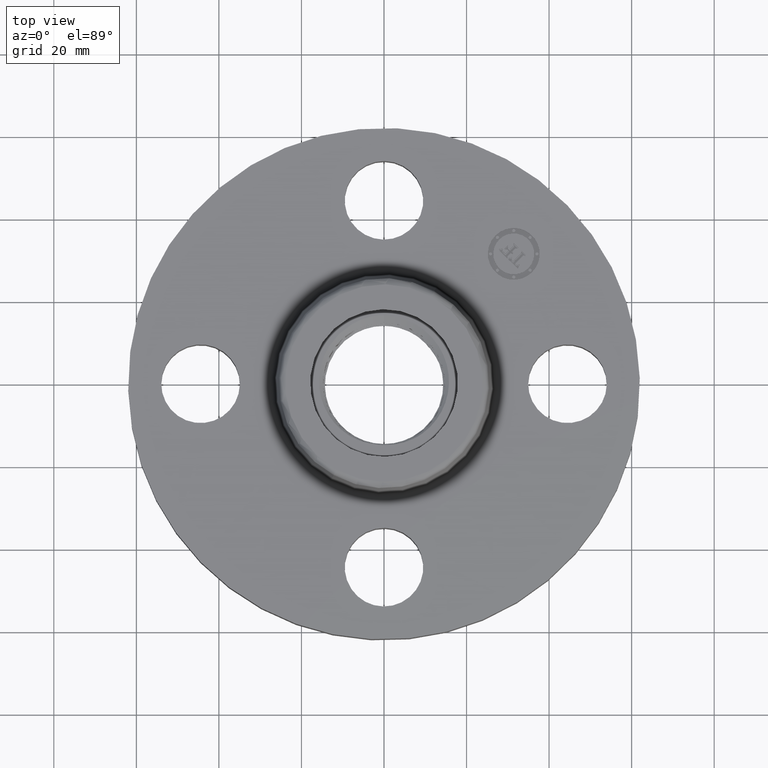
[diagram: clean part render]
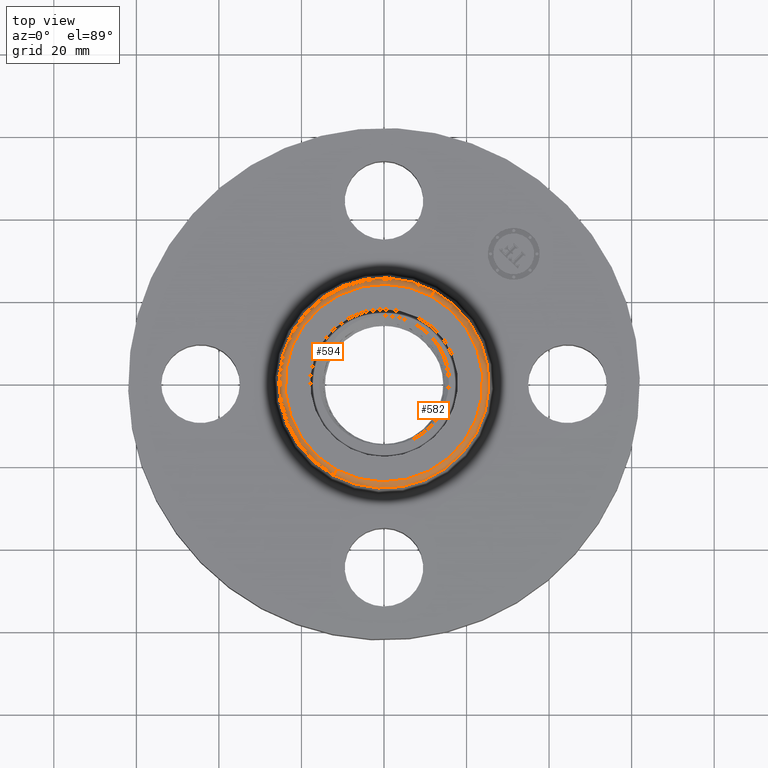
[diagram: same view with one multi-face feature highlighted, each face labeled with its STEP entity id]
A machine part, top view. The highlighted faces form ONE feature: a constant-radius fillet chain: 2 tangent blend faces with common blend radius 1.524 mm. The faces share edges in the B-rep.
Their STEP definitions:
[1] entity #594 (Torus):
#542=AXIS2_PLACEMENT_3D('Circle Axis2P3D',#540,#541,$) ;
#555=AXIS2_PLACEMENT_3D('Torus Axis2P3D',#552,#553,#554) ;
#559=AXIS2_PLACEMENT_3D('Circle Axis2P3D',#557,#558,$) ;
#573=AXIS2_PLACEMENT_3D('Circle Axis2P3D',#571,#572,$) ;
#585=AXIS2_PLACEMENT_3D('Circle Axis2P3D',#583,#584,$) ;
#518=CARTESIAN_POINT('Vertex',(0.480258892685,0.879108006303,0.950418890664)) ;
#525=CARTESIAN_POINT('Vertex',(-0.480258892685,-0.879108006303,0.950418890664)) ;
#540=CARTESIAN_POINT('Axis2P3D Location',(0.,0.,0.950418890664)) ;
#552=CARTESIAN_POINT('Axis2P3D Location',(0.,0.,0.940000000004)) ;
#557=CARTESIAN_POINT('Axis2P3D Location',(0.45193037344,0.827252999652,0.940000000004)) ;
#561=CARTESIAN_POINT('Vertex',(0.45193037344,0.827252999652,1.)) ;
#568=CARTESIAN_POINT('Vertex',(-0.45193037344,-0.827252999652,1.)) ;
#571=CARTESIAN_POINT('Axis2P3D Location',(-0.45193037344,-0.827252999652,0.940000000004)) ;
#583=CARTESIAN_POINT('Axis2P3D Location',(0.,0.,1.)) ;
#541=DIRECTION('Axis2P3D Direction',(0.,0.,-0.0393700787402)) ;
#553=DIRECTION('Axis2P3D Direction',(0.,0.,-0.0393700787402)) ;
#554=DIRECTION('Axis2P3D XDirection',(-0.0188750212049,-0.0345504945626,0.)) ;
#558=DIRECTION('Axis2P3D Direction',(-0.0345504945626,0.0188750212049,0.)) ;
#572=DIRECTION('Axis2P3D Direction',(0.0345504945626,-0.0188750212049,0.)) ;
#584=DIRECTION('Axis2P3D Direction',(0.,0.,-0.0393700787402)) ;
#589=ORIENTED_EDGE('',*,*,#544,.F.) ;
#590=ORIENTED_EDGE('',*,*,#575,.T.) ;
#591=ORIENTED_EDGE('',*,*,#587,.T.) ;
#592=ORIENTED_EDGE('',*,*,#563,.F.) ;
#594=ADVANCED_FACE('PartBody',(#593),#556,.T.) ;
#543=CIRCLE('generated circle',#542,1.00173823464) ;
#560=CIRCLE('generated circle',#559,0.0600000000002) ;
#574=CIRCLE('generated circle',#573,0.0600000000002) ;
#586=CIRCLE('generated circle',#585,0.942649769464) ;
#556=TOROIDAL_SURFACE('homeo Torus',#555,0.942649769464,0.0600000000002) ;
#544=EDGE_CURVE('',#526,#519,#543,.T.) ;
#563=EDGE_CURVE('',#519,#562,#560,.F.) ;
#575=EDGE_CURVE('',#526,#569,#574,.F.) ;
#587=EDGE_CURVE('',#569,#562,#586,.T.) ;
#588=EDGE_LOOP('',(#589,#590,#591,#592)) ;
#593=FACE_OUTER_BOUND('',#588,.T.) ;
#519=VERTEX_POINT('',#518) ;
#526=VERTEX_POINT('',#525) ;
#562=VERTEX_POINT('',#561) ;
#569=VERTEX_POINT('',#568) ;
[2] entity #582 (Torus):
#523=AXIS2_PLACEMENT_3D('Circle Axis2P3D',#521,#522,$) ;
#555=AXIS2_PLACEMENT_3D('Torus Axis2P3D',#552,#553,#554) ;
#559=AXIS2_PLACEMENT_3D('Circle Axis2P3D',#557,#558,$) ;
#566=AXIS2_PLACEMENT_3D('Circle Axis2P3D',#564,#565,$) ;
#573=AXIS2_PLACEMENT_3D('Circle Axis2P3D',#571,#572,$) ;
#518=CARTESIAN_POINT('Vertex',(0.480258892685,0.879108006303,0.950418890664)) ;
#521=CARTESIAN_POINT('Axis2P3D Location',(0.,0.,0.950418890664)) ;
#525=CARTESIAN_POINT('Vertex',(-0.480258892685,-0.879108006303,0.950418890664)) ;
#552=CARTESIAN_POINT('Axis2P3D Location',(0.,0.,0.940000000004)) ;
#557=CARTESIAN_POINT('Axis2P3D Location',(0.45193037344,0.827252999652,0.940000000004)) ;
#561=CARTESIAN_POINT('Vertex',(0.45193037344,0.827252999652,1.)) ;
#564=CARTESIAN_POINT('Axis2P3D Location',(0.,0.,1.)) ;
#568=CARTESIAN_POINT('Vertex',(-0.45193037344,-0.827252999652,1.)) ;
#571=CARTESIAN_POINT('Axis2P3D Location',(-0.45193037344,-0.827252999652,0.940000000004)) ;
#522=DIRECTION('Axis2P3D Direction',(0.,0.,-0.0393700787402)) ;
#553=DIRECTION('Axis2P3D Direction',(0.,0.,-0.0393700787402)) ;
#554=DIRECTION('Axis2P3D XDirection',(-0.0188750212049,-0.0345504945626,0.)) ;
#558=DIRECTION('Axis2P3D Direction',(-0.0345504945626,0.0188750212049,0.)) ;
#565=DIRECTION('Axis2P3D Direction',(0.,0.,-0.0393700787402)) ;
#572=DIRECTION('Axis2P3D Direction',(0.0345504945626,-0.0188750212049,0.)) ;
#577=ORIENTED_EDGE('',*,*,#527,.F.) ;
#578=ORIENTED_EDGE('',*,*,#563,.T.) ;
#579=ORIENTED_EDGE('',*,*,#570,.T.) ;
#580=ORIENTED_EDGE('',*,*,#575,.F.) ;
#582=ADVANCED_FACE('PartBody',(#581),#556,.T.) ;
#524=CIRCLE('generated circle',#523,1.00173823464) ;
#560=CIRCLE('generated circle',#559,0.0600000000002) ;
#567=CIRCLE('generated circle',#566,0.942649769464) ;
#574=CIRCLE('generated circle',#573,0.0600000000002) ;
#556=TOROIDAL_SURFACE('homeo Torus',#555,0.942649769464,0.0600000000002) ;
#527=EDGE_CURVE('',#519,#526,#524,.T.) ;
#563=EDGE_CURVE('',#519,#562,#560,.F.) ;
#570=EDGE_CURVE('',#562,#569,#567,.T.) ;
#575=EDGE_CURVE('',#526,#569,#574,.F.) ;
#576=EDGE_LOOP('',(#577,#578,#579,#580)) ;
#581=FACE_OUTER_BOUND('',#576,.T.) ;
#519=VERTEX_POINT('',#518) ;
#526=VERTEX_POINT('',#525) ;
#562=VERTEX_POINT('',#561) ;
#569=VERTEX_POINT('',#568) ;